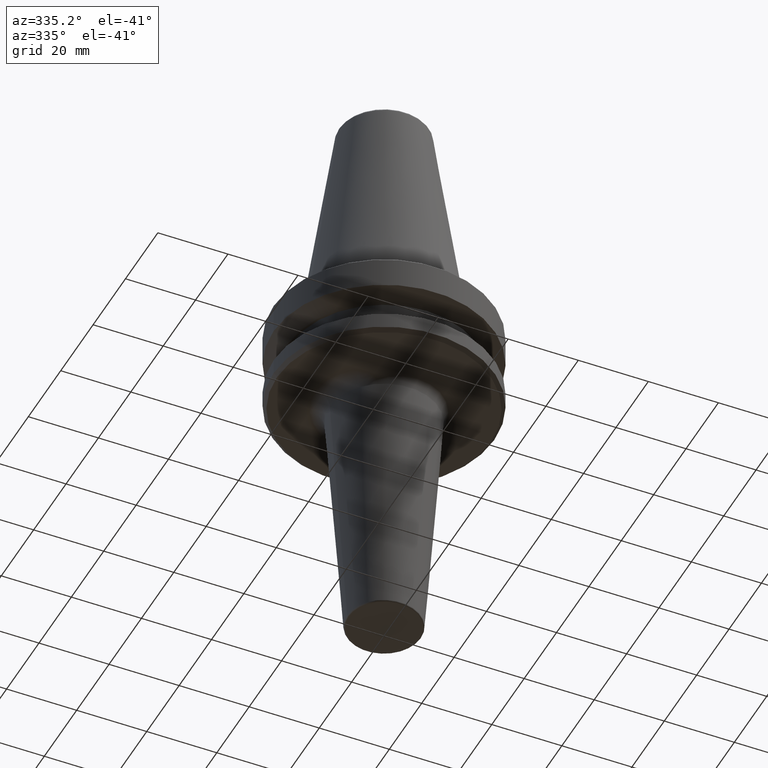
[diagram: clean part render]
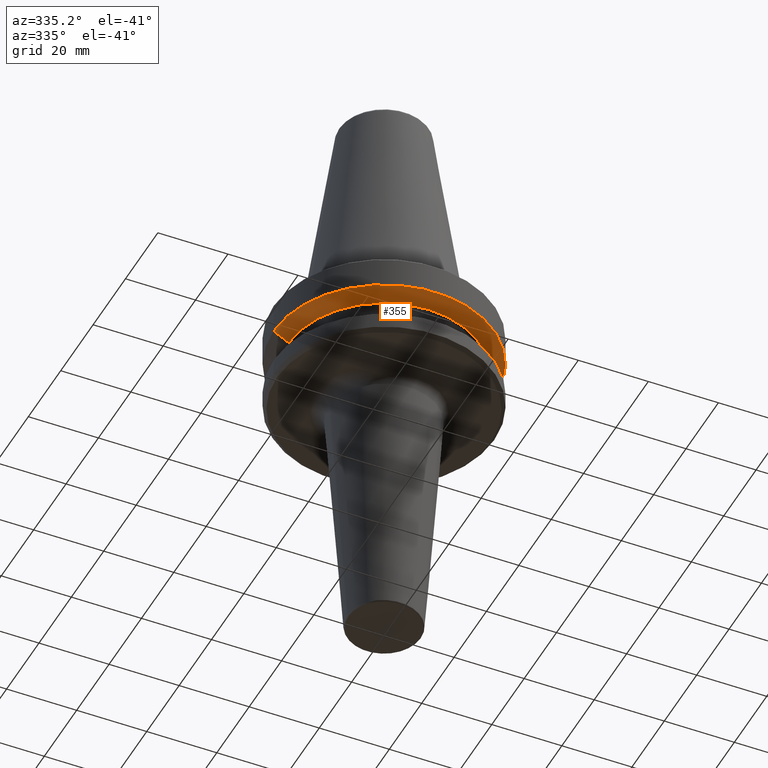
[diagram: same view with one face highlighted and labeled with its STEP entity id]
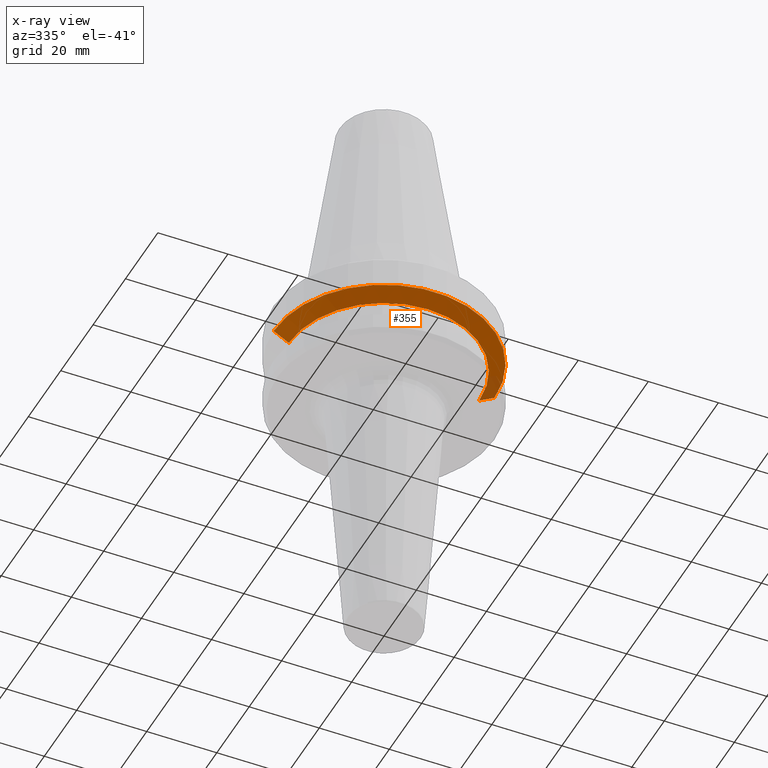
[diagram: x-ray of the same camera — body ghosted, the highlighted face saturated]
A machine part, auxiliary view. The second image highlights one B-rep face of the part: STEP entity #355.
The next image is the same camera in x-ray: the body ghosted, the highlighted face saturated — about 5% of this face is hidden behind the body in this view.
In plain terms, the highlighted conical surface has half-angle 60 deg.
Its self-contained STEP definition (entity closure, byte-faithful):
#7 = DIRECTION ( 'NONE',  ( 0.8660254037844383700, 0.0000000000000000000, 0.5000000000000003300 ) ) ;
#96 = EDGE_CURVE ( 'NONE', #301, #680, #295, .T. ) ;
#113 = CARTESIAN_POINT ( 'NONE',  ( 31.50000000000008500, 0.0000000000000000000, -76.99985799368391800 ) ) ;
#134 = CARTESIAN_POINT ( 'NONE',  ( 0.0000000000000000000, 0.0000000000000000000, -76.99985799368391800 ) ) ;
#145 = AXIS2_PLACEMENT_3D ( 'NONE', #771, #304, #859 ) ;
#168 = AXIS2_PLACEMENT_3D ( 'NONE', #134, #864, #222 ) ;
#169 = ORIENTED_EDGE ( 'NONE', *, *, #968, .F. ) ;
#183 = ORIENTED_EDGE ( 'NONE', *, *, #364, .T. ) ;
#222 = DIRECTION ( 'NONE',  ( 1.000000000000000000, 0.0000000000000000000, 0.0000000000000000000 ) ) ;
#259 = CARTESIAN_POINT ( 'NONE',  ( 0.0000000000000000000, 0.0000000000000000000, -76.99985799368391800 ) ) ;
#295 = LINE ( 'NONE', #974, #684 ) ;
#301 = VERTEX_POINT ( 'NONE', #728 ) ;
#304 = DIRECTION ( 'NONE',  ( -0.0000000000000000000, -0.0000000000000000000, 1.000000000000000000 ) ) ;
#333 = VERTEX_POINT ( 'NONE', #392 ) ;
#343 = DIRECTION ( 'NONE',  ( 1.000000000000000000, 0.0000000000000000000, 0.0000000000000000000 ) ) ;
#355 = ADVANCED_FACE ( 'NONE', ( #588 ), #749, .T. ) ;
#364 = EDGE_CURVE ( 'NONE', #811, #301, #996, .T. ) ;
#365 = ORIENTED_EDGE ( 'NONE', *, *, #96, .T. ) ;
#392 = CARTESIAN_POINT ( 'NONE',  ( -31.50000000000008500, 3.857637417314172900E-015, -76.99985799368391800 ) ) ;
#425 = AXIS2_PLACEMENT_3D ( 'NONE', #259, #815, #343 ) ;
#575 = VECTOR ( 'NONE', #1009, 1000.000000000000100 ) ;
#588 = FACE_OUTER_BOUND ( 'NONE', #861, .T. ) ;
#594 = LINE ( 'NONE', #847, #575 ) ;
#618 = ORIENTED_EDGE ( 'NONE', *, *, #662, .F. ) ;
#662 = EDGE_CURVE ( 'NONE', #811, #333, #594, .T. ) ;
#680 = VERTEX_POINT ( 'NONE', #113 ) ;
#684 = VECTOR ( 'NONE', #7, 1000.000000000000100 ) ;
#728 = CARTESIAN_POINT ( 'NONE',  ( 27.16962701892322600, 0.0000000000000000000, -79.50000000000012800 ) ) ;
#749 = CONICAL_SURFACE ( 'NONE', #168, 31.50000000000008500, 1.047197551196597400 ) ;
#771 = CARTESIAN_POINT ( 'NONE',  ( 0.0000000000000000000, 0.0000000000000000000, -79.50000000000012800 ) ) ;
#780 = CARTESIAN_POINT ( 'NONE',  ( -27.16962701892322600, 3.592478546794674900E-015, -79.50000000000012800 ) ) ;
#809 = CIRCLE ( 'NONE', #425, 31.50000000000008500 ) ;
#811 = VERTEX_POINT ( 'NONE', #780 ) ;
#815 = DIRECTION ( 'NONE',  ( -0.0000000000000000000, -0.0000000000000000000, 1.000000000000000000 ) ) ;
#847 = CARTESIAN_POINT ( 'NONE',  ( -31.50000000000008500, 3.857637417314172900E-015, -76.99985799368391800 ) ) ;
#859 = DIRECTION ( 'NONE',  ( 1.000000000000000000, 0.0000000000000000000, 0.0000000000000000000 ) ) ;
#861 = EDGE_LOOP ( 'NONE', ( #618, #183, #365, #169 ) ) ;
#864 = DIRECTION ( 'NONE',  ( -0.0000000000000000000, -0.0000000000000000000, 1.000000000000000000 ) ) ;
#968 = EDGE_CURVE ( 'NONE', #333, #680, #809, .T. ) ;
#974 = CARTESIAN_POINT ( 'NONE',  ( 31.50000000000008500, 0.0000000000000000000, -76.99985799368391800 ) ) ;
#996 = CIRCLE ( 'NONE', #145, 27.16962701892322600 ) ;
#1009 = DIRECTION ( 'NONE',  ( -0.8660254037844383700, 1.060575238724906500E-016, 0.5000000000000003300 ) ) ;